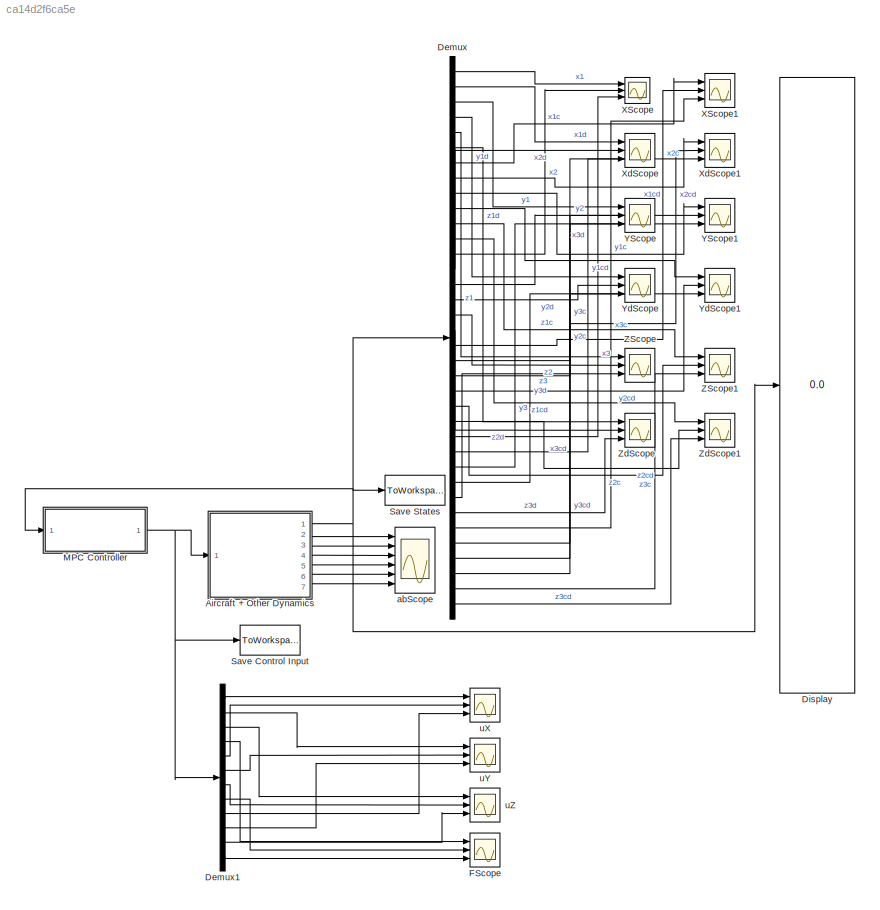
MODEL slx_ca14d2f6ca5e
KIND model
CONFIG AbsTol = auto
CONFIG EnableMultiTasking = off
CONFIG FixedStep = tstep
CONFIG InitFcn = initSim;
CONFIG MaxStep = tstep
CONFIG MinStep = auto
CONFIG RelTol = 1e-3
CONFIG SampleTimeConstraint = Unconstrained
CONFIG Solver = ode23t
CONFIG SolverName = ode23t
CONFIG StartTime = 0.0
CONFIG StopFcn = plotSimSolution;
CONFIG StopTime = 5
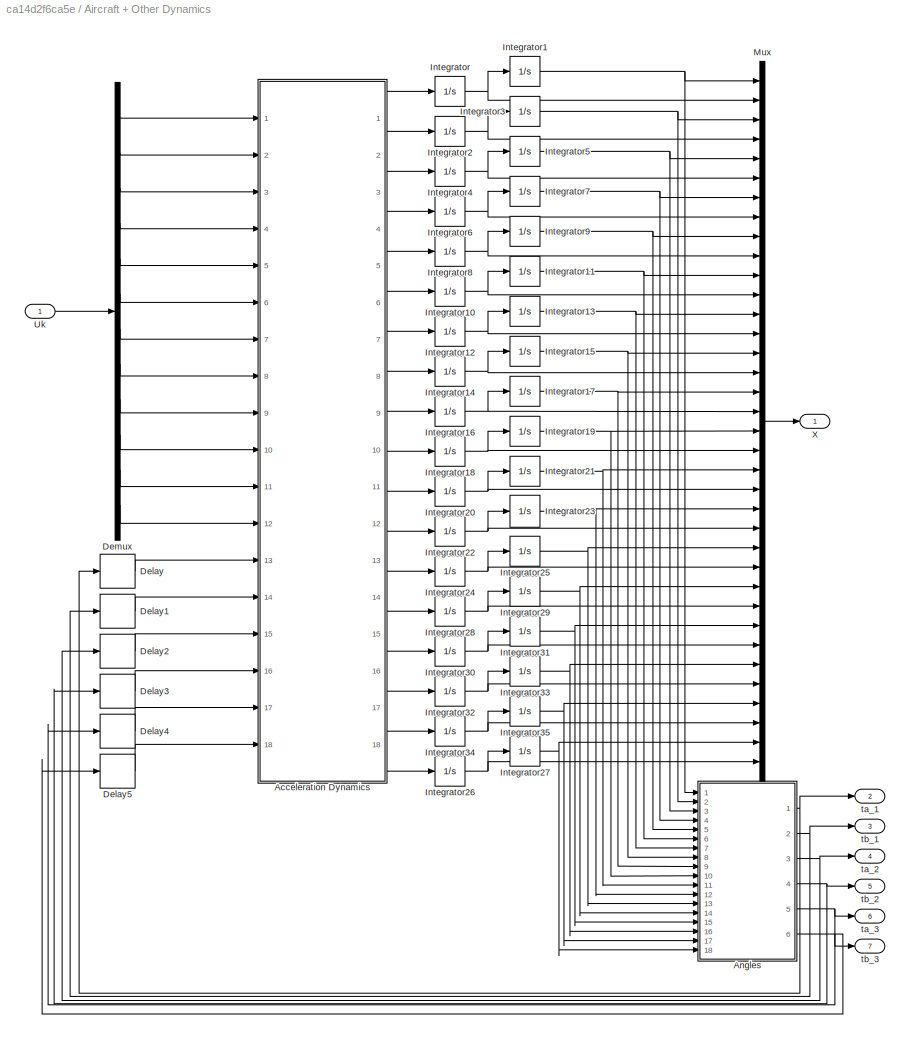
BLOCK [SubSystem] Aircraft + Other Dynamics
  Ports = [1, 7]
  RequestExecContextInheritance = off
  Variant = off
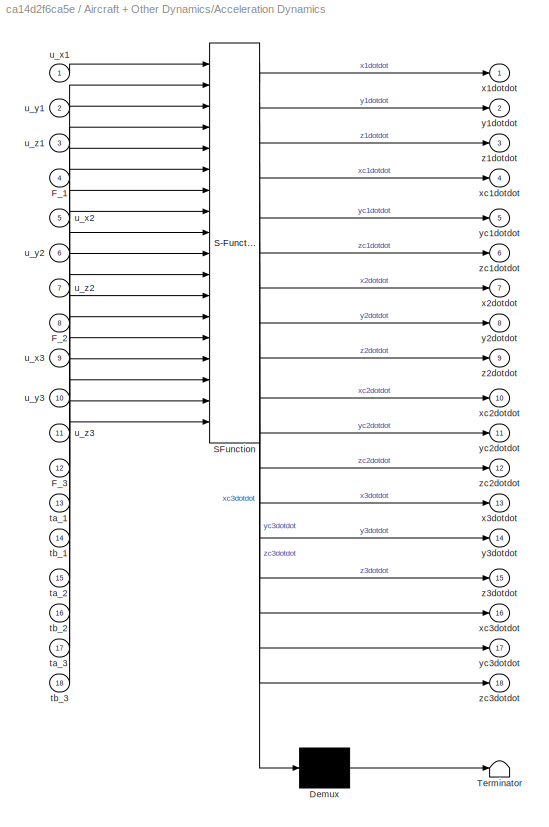
BLOCK [SubSystem] Aircraft + Other Dynamics/Acceleration Dynamics
  ErrorFcn = Stateflow.Translate.translate
  PermitHierarchicalResolution = ExplicitOnly
  Ports = [18, 18]
  RequestExecContextInheritance = off
  SFBlockType = MATLAB Function
  TreatAsAtomicUnit = on
  Variant = off
BLOCK [Demux] Aircraft + Other Dynamics/Acceleration Dynamics/ Demux 
  Outputs = 1
  Ports = [1, 1]
BLOCK [S-Function] Aircraft + Other Dynamics/Acceleration Dynamics/ SFunction 
  EnableBusSupport = on
  FunctionName = sf_sfun
  PortCounts = [18 19]
  Ports = [18, 19]
  SFcnIsStateOwnerBlock = off
  SFunctionDeploymentMode = off
  Tag = Stateflow S-Function MultiAgentNewtonian 2
BLOCK [Terminator] Aircraft + Other Dynamics/Acceleration Dynamics/ Terminator 
BLOCK [Inport] Aircraft + Other Dynamics/Acceleration Dynamics/F_1
  IconDisplay = Port number
  Port = 4
BLOCK [Inport] Aircraft + Other Dynamics/Acceleration Dynamics/F_2
  IconDisplay = Port number
  Port = 8
BLOCK [Inport] Aircraft + Other Dynamics/Acceleration Dynamics/F_3
  IconDisplay = Port number
  Port = 12
BLOCK [Inport] Aircraft + Other Dynamics/Acceleration Dynamics/ta_1
  IconDisplay = Port number
  Port = 13
BLOCK [Inport] Aircraft + Other Dynamics/Acceleration Dynamics/ta_2
  IconDisplay = Port number
  Port = 15
BLOCK [Inport] Aircraft + Other Dynamics/Acceleration Dynamics/ta_3
  IconDisplay = Port number
  Port = 17
BLOCK [Inport] Aircraft + Other Dynamics/Acceleration Dynamics/tb_1
  IconDisplay = Port number
  Port = 14
BLOCK [Inport] Aircraft + Other Dynamics/Acceleration Dynamics/tb_2
  IconDisplay = Port number
  Port = 16
BLOCK [Inport] Aircraft + Other Dynamics/Acceleration Dynamics/tb_3
  IconDisplay = Port number
  Port = 18
BLOCK [Inport] Aircraft + Other Dynamics/Acceleration Dynamics/u_x1
  IconDisplay = Port number
BLOCK [Inport] Aircraft + Other Dynamics/Acceleration Dynamics/u_x2
  IconDisplay = Port number
  Port = 5
BLOCK [Inport] Aircraft + Other Dynamics/Acceleration Dynamics/u_x3
  IconDisplay = Port number
  Port = 9
BLOCK [Inport] Aircraft + Other Dynamics/Acceleration Dynamics/u_y1
  IconDisplay = Port number
  Port = 2
BLOCK [Inport] Aircraft + Other Dynamics/Acceleration Dynamics/u_y2
  IconDisplay = Port number
  Port = 6
BLOCK [Inport] Aircraft + Other Dynamics/Acceleration Dynamics/u_y3
  IconDisplay = Port number
  Port = 10
BLOCK [Inport] Aircraft + Other Dynamics/Acceleration Dynamics/u_z1
  IconDisplay = Port number
  Port = 3
BLOCK [Inport] Aircraft + Other Dynamics/Acceleration Dynamics/u_z2
  IconDisplay = Port number
  Port = 7
BLOCK [Inport] Aircraft + Other Dynamics/Acceleration Dynamics/u_z3
  IconDisplay = Port number
  Port = 11
BLOCK [Outport] Aircraft + Other Dynamics/Acceleration Dynamics/x1dotdot
  IconDisplay = Port number
BLOCK [Outport] Aircraft + Other Dynamics/Acceleration Dynamics/x2dotdot
  IconDisplay = Port number
  Port = 7
BLOCK [Outport] Aircraft + Other Dynamics/Acceleration Dynamics/x3dotdot
  IconDisplay = Port number
  Port = 13
BLOCK [Outport] Aircraft + Other Dynamics/Acceleration Dynamics/xc1dotdot
  IconDisplay = Port number
  Port = 4
BLOCK [Outport] Aircraft + Other Dynamics/Acceleration Dynamics/xc2dotdot
  IconDisplay = Port number
  Port = 10
BLOCK [Outport] Aircraft + Other Dynamics/Acceleration Dynamics/xc3dotdot
  IconDisplay = Port number
  Port = 16
BLOCK [Outport] Aircraft + Other Dynamics/Acceleration Dynamics/y1dotdot
  IconDisplay = Port number
  Port = 2
BLOCK [Outport] Aircraft + Other Dynamics/Acceleration Dynamics/y2dotdot
  IconDisplay = Port number
  Port = 8
BLOCK [Outport] Aircraft + Other Dynamics/Acceleration Dynamics/y3dotdot
  IconDisplay = Port number
  Port = 14
BLOCK [Outport] Aircraft + Other Dynamics/Acceleration Dynamics/yc1dotdot
  IconDisplay = Port number
  Port = 5
BLOCK [Outport] Aircraft + Other Dynamics/Acceleration Dynamics/yc2dotdot
  IconDisplay = Port number
  Port = 11
BLOCK [Outport] Aircraft + Other Dynamics/Acceleration Dynamics/yc3dotdot
  IconDisplay = Port number
  Port = 17
BLOCK [Outport] Aircraft + Other Dynamics/Acceleration Dynamics/z1dotdot
  IconDisplay = Port number
  Port = 3
BLOCK [Outport] Aircraft + Other Dynamics/Acceleration Dynamics/z2dotdot
  IconDisplay = Port number
  Port = 9
BLOCK [Outport] Aircraft + Other Dynamics/Acceleration Dynamics/z3dotdot
  IconDisplay = Port number
  Port = 15
BLOCK [Outport] Aircraft + Other Dynamics/Acceleration Dynamics/zc1dotdot
  IconDisplay = Port number
  Port = 6
BLOCK [Outport] Aircraft + Other Dynamics/Acceleration Dynamics/zc2dotdot
  IconDisplay = Port number
  Port = 12
BLOCK [Outport] Aircraft + Other Dynamics/Acceleration Dynamics/zc3dotdot
  IconDisplay = Port number
  Port = 18
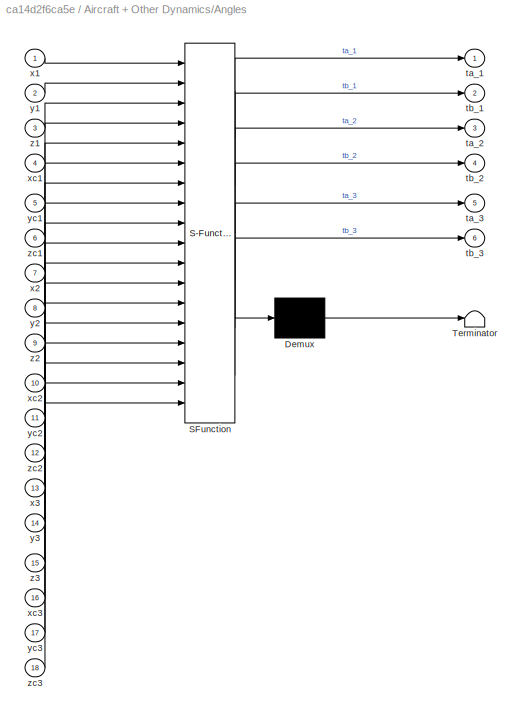
BLOCK [SubSystem] Aircraft + Other Dynamics/Angles
  ErrorFcn = Stateflow.Translate.translate
  PermitHierarchicalResolution = ExplicitOnly
  Ports = [18, 6]
  RequestExecContextInheritance = off
  SFBlockType = MATLAB Function
  TreatAsAtomicUnit = on
  Variant = off
BLOCK [Demux] Aircraft + Other Dynamics/Angles/ Demux 
  Outputs = 1
  Ports = [1, 1]
BLOCK [S-Function] Aircraft + Other Dynamics/Angles/ SFunction 
  EnableBusSupport = on
  FunctionName = sf_sfun
  PortCounts = [18 7]
  Ports = [18, 7]
  SFcnIsStateOwnerBlock = off
  SFunctionDeploymentMode = off
  Tag = Stateflow S-Function MultiAgentNewtonian 1
BLOCK [Terminator] Aircraft + Other Dynamics/Angles/ Terminator 
BLOCK [Outport] Aircraft + Other Dynamics/Angles/ta_1
  IconDisplay = Port number
BLOCK [Outport] Aircraft + Other Dynamics/Angles/ta_2
  IconDisplay = Port number
  Port = 3
BLOCK [Outport] Aircraft + Other Dynamics/Angles/ta_3
  IconDisplay = Port number
  Port = 5
BLOCK [Outport] Aircraft + Other Dynamics/Angles/tb_1
  IconDisplay = Port number
  Port = 2
BLOCK [Outport] Aircraft + Other Dynamics/Angles/tb_2
  IconDisplay = Port number
  Port = 4
BLOCK [Outport] Aircraft + Other Dynamics/Angles/tb_3
  IconDisplay = Port number
  Port = 6
BLOCK [Inport] Aircraft + Other Dynamics/Angles/x1
  IconDisplay = Port number
BLOCK [Inport] Aircraft + Other Dynamics/Angles/x2
  IconDisplay = Port number
  Port = 7
BLOCK [Inport] Aircraft + Other Dynamics/Angles/x3
  IconDisplay = Port number
  Port = 13
BLOCK [Inport] Aircraft + Other Dynamics/Angles/xc1
  IconDisplay = Port number
  Port = 4
BLOCK [Inport] Aircraft + Other Dynamics/Angles/xc2
  IconDisplay = Port number
  Port = 10
BLOCK [Inport] Aircraft + Other Dynamics/Angles/xc3
  IconDisplay = Port number
  Port = 16
BLOCK [Inport] Aircraft + Other Dynamics/Angles/y1
  IconDisplay = Port number
  Port = 2
BLOCK [Inport] Aircraft + Other Dynamics/Angles/y2
  IconDisplay = Port number
  Port = 8
BLOCK [Inport] Aircraft + Other Dynamics/Angles/y3
  IconDisplay = Port number
  Port = 14
BLOCK [Inport] Aircraft + Other Dynamics/Angles/yc1
  IconDisplay = Port number
  Port = 5
BLOCK [Inport] Aircraft + Other Dynamics/Angles/yc2
  IconDisplay = Port number
  Port = 11
BLOCK [Inport] Aircraft + Other Dynamics/Angles/yc3
  IconDisplay = Port number
  Port = 17
BLOCK [Inport] Aircraft + Other Dynamics/Angles/z1
  IconDisplay = Port number
  Port = 3
BLOCK [Inport] Aircraft + Other Dynamics/Angles/z2
  IconDisplay = Port number
  Port = 9
BLOCK [Inport] Aircraft + Other Dynamics/Angles/z3
  IconDisplay = Port number
  Port = 15
BLOCK [Inport] Aircraft + Other Dynamics/Angles/zc1
  IconDisplay = Port number
  Port = 6
BLOCK [Inport] Aircraft + Other Dynamics/Angles/zc2
  IconDisplay = Port number
  Port = 12
BLOCK [Inport] Aircraft + Other Dynamics/Angles/zc3
  IconDisplay = Port number
  Port = 18
BLOCK [Delay] Aircraft + Other Dynamics/Delay
  DelayLength = 1
  InputPortMap = u0
  Ports = [1, 1]
  SampleTime = tstep
BLOCK [Delay] Aircraft + Other Dynamics/Delay1
  DelayLength = 1
  InputPortMap = u0
  Ports = [1, 1]
  SampleTime = tstep
BLOCK [Delay] Aircraft + Other Dynamics/Delay2
  DelayLength = 1
  InputPortMap = u0
  Ports = [1, 1]
  SampleTime = tstep
BLOCK [Delay] Aircraft + Other Dynamics/Delay3
  DelayLength = 1
  InputPortMap = u0
  Ports = [1, 1]
  SampleTime = tstep
BLOCK [Delay] Aircraft + Other Dynamics/Delay4
  DelayLength = 1
  InputPortMap = u0
  Ports = [1, 1]
  SampleTime = tstep
BLOCK [Delay] Aircraft + Other Dynamics/Delay5
  DelayLength = 1
  InputPortMap = u0
  Ports = [1, 1]
  SampleTime = tstep
BLOCK [Demux] Aircraft + Other Dynamics/Demux
  DisplayOption = bar
  Outputs = 12
  Ports = [1, 12]
BLOCK [Integrator] Aircraft + Other Dynamics/Integrator
  Ports = [1, 1]
BLOCK [Integrator] Aircraft + Other Dynamics/Integrator1
  InitialCondition = 2.1
  Ports = [1, 1]
BLOCK [Integrator] Aircraft + Other Dynamics/Integrator10
  Ports = [1, 1]
BLOCK [Integrator] Aircraft + Other Dynamics/Integrator11
  InitialCondition = 1
  Ports = [1, 1]
BLOCK [Integrator] Aircraft + Other Dynamics/Integrator12
  Ports = [1, 1]
BLOCK [Integrator] Aircraft + Other Dynamics/Integrator13
  InitialCondition = 3
  Ports = [1, 1]
BLOCK [Integrator] Aircraft + Other Dynamics/Integrator14
  Ports = [1, 1]
BLOCK [Integrator] Aircraft + Other Dynamics/Integrator15
  Ports = [1, 1]
BLOCK [Integrator] Aircraft + Other Dynamics/Integrator16
  Ports = [1, 1]
BLOCK [Integrator] Aircraft + Other Dynamics/Integrator17
  InitialCondition = 2.2
  Ports = [1, 1]
BLOCK [Integrator] Aircraft + Other Dynamics/Integrator18
  Ports = [1, 1]
BLOCK [Integrator] Aircraft + Other Dynamics/Integrator19
  InitialCondition = 3
  Ports = [1, 1]
BLOCK [Integrator] Aircraft + Other Dynamics/Integrator2
  Ports = [1, 1]
BLOCK [Integrator] Aircraft + Other Dynamics/Integrator20
  Ports = [1, 1]
BLOCK [Integrator] Aircraft + Other Dynamics/Integrator21
  Ports = [1, 1]
BLOCK [Integrator] Aircraft + Other Dynamics/Integrator22
  Ports = [1, 1]
BLOCK [Integrator] Aircraft + Other Dynamics/Integrator23
  InitialCondition = 1
  Ports = [1, 1]
BLOCK [Integrator] Aircraft + Other Dynamics/Integrator24
  Ports = [1, 1]
BLOCK [Integrator] Aircraft + Other Dynamics/Integrator25
  InitialCondition = 3.9
  Ports = [1, 1]
BLOCK [Integrator] Aircraft + Other Dynamics/Integrator26
  Ports = [1, 1]
BLOCK [Integrator] Aircraft + Other Dynamics/Integrator27
  InitialCondition = 1
  Ports = [1, 1]
BLOCK [Integrator] Aircraft + Other Dynamics/Integrator28
  Ports = [1, 1]
BLOCK [Integrator] Aircraft + Other Dynamics/Integrator29
  Ports = [1, 1]
BLOCK [Integrator] Aircraft + Other Dynamics/Integrator3
  Ports = [1, 1]
BLOCK [Integrator] Aircraft + Other Dynamics/Integrator30
  Ports = [1, 1]
BLOCK [Integrator] Aircraft + Other Dynamics/Integrator31
  InitialCondition = 2.2
  Ports = [1, 1]
BLOCK [Integrator] Aircraft + Other Dynamics/Integrator32
  Ports = [1, 1]
BLOCK [Integrator] Aircraft + Other Dynamics/Integrator33
  InitialCondition = 3.9
  Ports = [1, 1]
BLOCK [Integrator] Aircraft + Other Dynamics/Integrator34
  Ports = [1, 1]
BLOCK [Integrator] Aircraft + Other Dynamics/Integrator35
  Ports = [1, 1]
BLOCK [Integrator] Aircraft + Other Dynamics/Integrator4
  Ports = [1, 1]
BLOCK [Integrator] Aircraft + Other Dynamics/Integrator5
  InitialCondition = 2.2
  Ports = [1, 1]
BLOCK [Integrator] Aircraft + Other Dynamics/Integrator6
  Ports = [1, 1]
BLOCK [Integrator] Aircraft + Other Dynamics/Integrator7
  InitialCondition = 2.1
  Ports = [1, 1]
BLOCK [Integrator] Aircraft + Other Dynamics/Integrator8
  Ports = [1, 1]
BLOCK [Integrator] Aircraft + Other Dynamics/Integrator9
  Ports = [1, 1]
BLOCK [Mux] Aircraft + Other Dynamics/Mux
  DisplayOption = bar
  Inputs = 36
  Ports = [36, 1]
BLOCK [Inport] Aircraft + Other Dynamics/Uk
  IconDisplay = Port number
BLOCK [Outport] Aircraft + Other Dynamics/X
  IconDisplay = Port number
BLOCK [Outport] Aircraft + Other Dynamics/ta_1
  IconDisplay = Port number
  Port = 2
BLOCK [Outport] Aircraft + Other Dynamics/ta_2
  IconDisplay = Port number
  Port = 4
BLOCK [Outport] Aircraft + Other Dynamics/ta_3
  IconDisplay = Port number
  Port = 6
BLOCK [Outport] Aircraft + Other Dynamics/tb_1
  IconDisplay = Port number
  Port = 3
BLOCK [Outport] Aircraft + Other Dynamics/tb_2
  IconDisplay = Port number
  Port = 5
BLOCK [Outport] Aircraft + Other Dynamics/tb_3
  IconDisplay = Port number
  Port = 7
BLOCK [Demux] Demux
  DisplayOption = bar
  Outputs = 36
  Ports = [1, 36]
BLOCK [Demux] Demux1
  DisplayOption = bar
  Outputs = 12
  Ports = [1, 12]
BLOCK [Display] Display
  Decimation = 1
  Ports = [1]
BLOCK [Scope] FScope
  NumInputPorts = 3
  Ports = [3]
  ScopeSpecificationString = Simulink.scopes.TimeScopeBlockCfg('CurrentConfiguration', extmgr.ConfigurationSet(extmgr.Configuration('Core','General UI',true),extmgr.Configuration('Core','Source UI',true),extmgr.Configuration('Sources','WiredSimulink',true,'DataLoggingVariableName','ScopeData1'),extmgr.Configuration('Visuals','Time Domain',true,'SerializedDisplays',{struct('MinYLimReal','55.4','MaxYLimReal','75.4','YLabelReal'...<+1439ch>
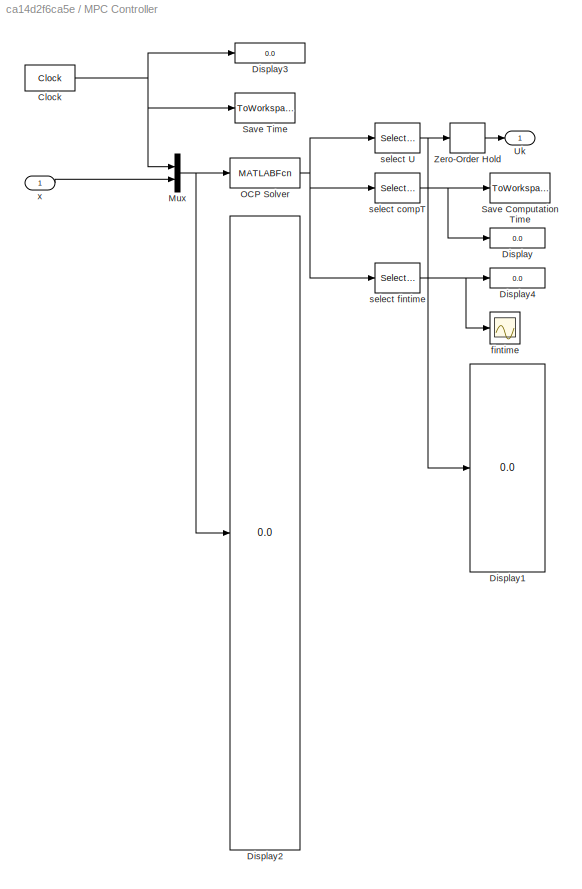
BLOCK [SubSystem] MPC Controller 
  Ports = [1, 1]
  RequestExecContextInheritance = off
  Variant = off
BLOCK [Clock] MPC Controller /Clock
  DisplayTime = on
BLOCK [Display] MPC Controller /Display
  Decimation = 1
  Ports = [1]
BLOCK [Display] MPC Controller /Display1
  Decimation = 1
  Ports = [1]
BLOCK [Display] MPC Controller /Display2
  Decimation = 1
  Ports = [1]
BLOCK [Display] MPC Controller /Display3
  Decimation = 1
  Ports = [1]
BLOCK [Display] MPC Controller /Display4
  Decimation = 1
  Ports = [1]
BLOCK [Mux] MPC Controller /Mux
  DisplayOption = bar
  Inputs = 2
  Ports = [2, 1]
BLOCK [MATLABFcn] MPC Controller /OCP Solver
  MATLABFcn = MAGSolver
  OutputDimensions = m+2
  Ports = [1, 1]
BLOCK [ToWorkspace] MPC Controller /Save Computation Time 
  FixptAsFi = on
  MaxDataPoints = inf
  Ports = [1]
  SampleTime = tstep
  Save2DSignal = 2-D array (concatenate along first dimension)
  VariableName = Comp_Time
BLOCK [ToWorkspace] MPC Controller /Save Time
  FixptAsFi = on
  MaxDataPoints = inf
  Ports = [1]
  SampleTime = -1
  Save2DSignal = 2-D array (concatenate along first dimension)
  VariableName = T
BLOCK [Outport] MPC Controller /Uk
  IconDisplay = Port number
BLOCK [ZeroOrderHold] MPC Controller /Zero-Order Hold
  SampleTime = tstep
BLOCK [Scope] MPC Controller /fintime
  NumInputPorts = 1
  Ports = [1]
  ScopeSpecificationString = Simulink.scopes.TimeScopeBlockCfg('CurrentConfiguration', extmgr.ConfigurationSet(extmgr.Configuration('Core','General UI',true),extmgr.Configuration('Core','Source UI',true),extmgr.Configuration('Sources','WiredSimulink',true,'DataLoggingVariableName','ScopeData1'),extmgr.Configuration('Visuals','Time Domain',true),extmgr.Configuration('Tools','Plot Navigation',true),extmgr.Configuration('Tools',...<+40ch>
BLOCK [Selector] MPC Controller /select U
  IndexOptions = Index vector (dialog)
  Indices = 3:m+2
  OutputSizes = 1
  Ports = [1, 1]
BLOCK [Selector] MPC Controller /select compT
  IndexOptions = Index vector (dialog)
  Indices = 2
  OutputSizes = 1
  Ports = [1, 1]
BLOCK [Selector] MPC Controller /select fintime
  IndexOptions = Index vector (dialog)
  Indices = 1
  OutputSizes = 1
  Ports = [1, 1]
BLOCK [Inport] MPC Controller /x
  IconDisplay = Port number
BLOCK [ToWorkspace] Save Control Input
  FixptAsFi = on
  MaxDataPoints = inf
  Ports = [1]
  SampleTime = -1
  Save2DSignal = 2-D array (concatenate along first dimension)
  VariableName = U
BLOCK [ToWorkspace] Save States
  FixptAsFi = on
  MaxDataPoints = inf
  Ports = [1]
  SampleTime = -1
  Save2DSignal = 3-D array (concatenate along third dimension)
  SaveFormat = Timeseries
  VariableName = X
BLOCK [Scope] XScope
  NumInputPorts = 3
  Ports = [3]
  ScopeSpecificationString = Simulink.scopes.TimeScopeBlockCfg('CurrentConfiguration', extmgr.ConfigurationSet(extmgr.Configuration('Core','General UI',true),extmgr.Configuration('Core','Source UI',true),extmgr.Configuration('Sources','WiredSimulink',true),extmgr.Configuration('Visuals','Time Domain',true,'SerializedDisplays',{struct('MinYLimReal','0.99692','MaxYLimReal','12.02774','YLabelReal','','MinYLimMag','0.99692','MaxY...<+1405ch>
BLOCK [Scope] XScope1
  NumInputPorts = 3
  Ports = [3]
  ScopeSpecificationString = Simulink.scopes.TimeScopeBlockCfg('CurrentConfiguration', extmgr.ConfigurationSet(extmgr.Configuration('Core','General UI',true),extmgr.Configuration('Core','Source UI',true),extmgr.Configuration('Sources','WiredSimulink',true,'DataLoggingVariableName','ScopeData1'),extmgr.Configuration('Visuals','Time Domain',true,'SerializedDisplays',{struct('MinYLimReal','0.99692','MaxYLimReal','12.02774','YLab...<+1447ch>
BLOCK [Scope] XdScope
  NumInputPorts = 3
  Ports = [3]
  ScopeSpecificationString = Simulink.scopes.TimeScopeBlockCfg('CurrentConfiguration', extmgr.ConfigurationSet(extmgr.Configuration('Core','General UI',true),extmgr.Configuration('Core','Source UI',true),extmgr.Configuration('Sources','WiredSimulink',true,'DataLoggingVariableName','ScopeData2'),extmgr.Configuration('Visuals','Time Domain',true,'SerializedDisplays',{struct('MinYLimReal','0.99692','MaxYLimReal','12.02774','YLab...<+1447ch>
BLOCK [Scope] XdScope1
  NumInputPorts = 3
  Ports = [3]
  ScopeSpecificationString = Simulink.scopes.TimeScopeBlockCfg('CurrentConfiguration', extmgr.ConfigurationSet(extmgr.Configuration('Core','General UI',true),extmgr.Configuration('Core','Source UI',true),extmgr.Configuration('Sources','WiredSimulink',true,'DataLoggingVariableName','ScopeData2'),extmgr.Configuration('Visuals','Time Domain',true,'SerializedDisplays',{struct('MinYLimReal','0.99692','MaxYLimReal','12.02774','YLab...<+1450ch>
BLOCK [Scope] YScope
  NumInputPorts = 3
  Ports = [3]
  ScopeSpecificationString = Simulink.scopes.TimeScopeBlockCfg('CurrentConfiguration', extmgr.ConfigurationSet(extmgr.Configuration('Core','General UI',true),extmgr.Configuration('Core','Source UI',true),extmgr.Configuration('Sources','WiredSimulink',true,'DataLoggingVariableName','ScopeData1'),extmgr.Configuration('Visuals','Time Domain',true,'SerializedDisplays',{struct('MinYLimReal','-37.74035','MaxYLimReal','35.30914','YL...<+1449ch>
BLOCK [Scope] YScope1
  NumInputPorts = 3
  Ports = [3]
  ScopeSpecificationString = Simulink.scopes.TimeScopeBlockCfg('CurrentConfiguration', extmgr.ConfigurationSet(extmgr.Configuration('Core','General UI',true),extmgr.Configuration('Core','Source UI',true),extmgr.Configuration('Sources','WiredSimulink',true,'DataLoggingVariableName','ScopeData3'),extmgr.Configuration('Visuals','Time Domain',true,'SerializedDisplays',{struct('MinYLimReal','-37.74035','MaxYLimReal','35.30914','YL...<+1452ch>
BLOCK [Scope] YdScope
  NumInputPorts = 3
  Ports = [3]
  ScopeSpecificationString = Simulink.scopes.TimeScopeBlockCfg('CurrentConfiguration', extmgr.ConfigurationSet(extmgr.Configuration('Core','General UI',true),extmgr.Configuration('Core','Source UI',true),extmgr.Configuration('Sources','WiredSimulink',true,'DataLoggingVariableName','ScopeData3'),extmgr.Configuration('Visuals','Time Domain',true,'SerializedDisplays',{struct('MinYLimReal','-37.74035','MaxYLimReal','35.30914','YL...<+1452ch>
BLOCK [Scope] YdScope1
  NumInputPorts = 3
  Ports = [3]
  ScopeSpecificationString = Simulink.scopes.TimeScopeBlockCfg('CurrentConfiguration', extmgr.ConfigurationSet(extmgr.Configuration('Core','General UI',true),extmgr.Configuration('Core','Source UI',true),extmgr.Configuration('Sources','WiredSimulink',true,'DataLoggingVariableName','ScopeData4'),extmgr.Configuration('Visuals','Time Domain',true,'SerializedDisplays',{struct('MinYLimReal','-37.74035','MaxYLimReal','35.30914','YL...<+1455ch>
BLOCK [Scope] ZScope
  NumInputPorts = 3
  Ports = [3]
  ScopeSpecificationString = Simulink.scopes.TimeScopeBlockCfg('CurrentConfiguration', extmgr.ConfigurationSet(extmgr.Configuration('Core','General UI',true),extmgr.Configuration('Core','Source UI',true),extmgr.Configuration('Sources','WiredSimulink',true,'DataLoggingVariableName','ScopeData2'),extmgr.Configuration('Visuals','Time Domain',true,'SerializedDisplays',{struct('MinYLimReal','-37.74035','MaxYLimReal','35.30914','YL...<+1449ch>
BLOCK [Scope] ZScope1
  NumInputPorts = 3
  Ports = [3]
  ScopeSpecificationString = Simulink.scopes.TimeScopeBlockCfg('CurrentConfiguration', extmgr.ConfigurationSet(extmgr.Configuration('Core','General UI',true),extmgr.Configuration('Core','Source UI',true),extmgr.Configuration('Sources','WiredSimulink',true,'DataLoggingVariableName','ScopeData5'),extmgr.Configuration('Visuals','Time Domain',true,'SerializedDisplays',{struct('MinYLimReal','-37.74035','MaxYLimReal','35.30914','YL...<+1452ch>
BLOCK [Scope] ZdScope
  NumInputPorts = 3
  Ports = [3]
  ScopeSpecificationString = Simulink.scopes.TimeScopeBlockCfg('CurrentConfiguration', extmgr.ConfigurationSet(extmgr.Configuration('Core','General UI',true),extmgr.Configuration('Core','Source UI',true),extmgr.Configuration('Sources','WiredSimulink',true,'DataLoggingVariableName','ScopeData4'),extmgr.Configuration('Visuals','Time Domain',true,'SerializedDisplays',{struct('MinYLimReal','-37.74035','MaxYLimReal','35.30914','YL...<+1452ch>
BLOCK [Scope] ZdScope1
  NumInputPorts = 3
  Ports = [3]
  ScopeSpecificationString = Simulink.scopes.TimeScopeBlockCfg('CurrentConfiguration', extmgr.ConfigurationSet(extmgr.Configuration('Core','General UI',true),extmgr.Configuration('Core','Source UI',true),extmgr.Configuration('Sources','WiredSimulink',true,'DataLoggingVariableName','ScopeData6'),extmgr.Configuration('Visuals','Time Domain',true,'SerializedDisplays',{struct('MinYLimReal','-37.74035','MaxYLimReal','35.30914','YL...<+1455ch>
BLOCK [Scope] abScope
  NumInputPorts = 6
  Ports = [6]
  ScopeSpecificationString = Simulink.scopes.TimeScopeBlockCfg('CurrentConfiguration', extmgr.ConfigurationSet(extmgr.Configuration('Core','General UI',true),extmgr.Configuration('Core','Source UI',true),extmgr.Configuration('Sources','WiredSimulink',true,'DataLoggingVariableName','ScopeData2'),extmgr.Configuration('Visuals','Time Domain',true,'SerializedDisplays',{struct('MinYLimReal','-37.74035','MaxYLimReal','35.30914','YL...<+1633ch>
BLOCK [Scope] uX
  NumInputPorts = 3
  Ports = [3]
  ScopeSpecificationString = Simulink.scopes.TimeScopeBlockCfg('CurrentConfiguration', extmgr.ConfigurationSet(extmgr.Configuration('Core','General UI',true),extmgr.Configuration('Core','Source UI',true),extmgr.Configuration('Sources','WiredSimulink',true,'DataLoggingVariableName','ScopeData1'),extmgr.Configuration('Visuals','Time Domain',true,'SerializedDisplays',{struct('MinYLimReal','-9.16843','MaxYLimReal','82.51438','YLa...<+1463ch>
BLOCK [Scope] uY
  NumInputPorts = 3
  Ports = [3]
  ScopeSpecificationString = Simulink.scopes.TimeScopeBlockCfg('CurrentConfiguration', extmgr.ConfigurationSet(extmgr.Configuration('Core','General UI',true),extmgr.Configuration('Core','Source UI',true),extmgr.Configuration('Sources','WiredSimulink',true,'DataLoggingVariableName','ScopeData2'),extmgr.Configuration('Visuals','Time Domain',true,'SerializedDisplays',{struct('MinYLimReal','-9.16843','MaxYLimReal','82.51438','YLa...<+1466ch>
BLOCK [Scope] uZ
  NumInputPorts = 3
  Ports = [3]
  ScopeSpecificationString = Simulink.scopes.TimeScopeBlockCfg('CurrentConfiguration', extmgr.ConfigurationSet(extmgr.Configuration('Core','General UI',true),extmgr.Configuration('Core','Source UI',true),extmgr.Configuration('Sources','WiredSimulink',true,'DataLoggingVariableName','ScopeData3'),extmgr.Configuration('Visuals','Time Domain',true,'SerializedDisplays',{struct('MinYLimReal','-37.74035','MaxYLimReal','35.30914','YL...<+1468ch>
LINE Aircraft + Other Dynamics/Acceleration Dynamics:1 -> Aircraft + Other Dynamics/Integrator:1
LINE Aircraft + Other Dynamics/Acceleration Dynamics:10 -> Aircraft + Other Dynamics/Integrator18:1
LINE Aircraft + Other Dynamics/Acceleration Dynamics:11 -> Aircraft + Other Dynamics/Integrator20:1
LINE Aircraft + Other Dynamics/Acceleration Dynamics:12 -> Aircraft + Other Dynamics/Integrator22:1
LINE Aircraft + Other Dynamics/Acceleration Dynamics:13 -> Aircraft + Other Dynamics/Integrator24:1
LINE Aircraft + Other Dynamics/Acceleration Dynamics:14 -> Aircraft + Other Dynamics/Integrator28:1
LINE Aircraft + Other Dynamics/Acceleration Dynamics:15 -> Aircraft + Other Dynamics/Integrator30:1
LINE Aircraft + Other Dynamics/Acceleration Dynamics:16 -> Aircraft + Other Dynamics/Integrator32:1
LINE Aircraft + Other Dynamics/Acceleration Dynamics:17 -> Aircraft + Other Dynamics/Integrator34:1
LINE Aircraft + Other Dynamics/Acceleration Dynamics:18 -> Aircraft + Other Dynamics/Integrator26:1
LINE Aircraft + Other Dynamics/Acceleration Dynamics:2 -> Aircraft + Other Dynamics/Integrator2:1
LINE Aircraft + Other Dynamics/Acceleration Dynamics:3 -> Aircraft + Other Dynamics/Integrator4:1
LINE Aircraft + Other Dynamics/Acceleration Dynamics:4 -> Aircraft + Other Dynamics/Integrator6:1
LINE Aircraft + Other Dynamics/Acceleration Dynamics:5 -> Aircraft + Other Dynamics/Integrator8:1
LINE Aircraft + Other Dynamics/Acceleration Dynamics:6 -> Aircraft + Other Dynamics/Integrator10:1
LINE Aircraft + Other Dynamics/Acceleration Dynamics:7 -> Aircraft + Other Dynamics/Integrator12:1
LINE Aircraft + Other Dynamics/Acceleration Dynamics:8 -> Aircraft + Other Dynamics/Integrator14:1
LINE Aircraft + Other Dynamics/Acceleration Dynamics:9 -> Aircraft + Other Dynamics/Integrator16:1
NET Aircraft + Other Dynamics/Angles:1 -> Aircraft + Other Dynamics/Delay:1, Aircraft + Other Dynamics/ta_1:1
NET Aircraft + Other Dynamics/Angles:2 -> Aircraft + Other Dynamics/Delay1:1, Aircraft + Other Dynamics/tb_1:1
NET Aircraft + Other Dynamics/Angles:3 -> Aircraft + Other Dynamics/Delay2:1, Aircraft + Other Dynamics/ta_2:1
NET Aircraft + Other Dynamics/Angles:4 -> Aircraft + Other Dynamics/Delay3:1, Aircraft + Other Dynamics/tb_2:1
NET Aircraft + Other Dynamics/Angles:5 -> Aircraft + Other Dynamics/Delay4:1, Aircraft + Other Dynamics/ta_3:1
NET Aircraft + Other Dynamics/Angles:6 -> Aircraft + Other Dynamics/Delay5:1, Aircraft + Other Dynamics/tb_3:1
LINE Aircraft + Other Dynamics/Delay1:1 -> Aircraft + Other Dynamics/Acceleration Dynamics:14
LINE Aircraft + Other Dynamics/Delay2:1 -> Aircraft + Other Dynamics/Acceleration Dynamics:15
LINE Aircraft + Other Dynamics/Delay3:1 -> Aircraft + Other Dynamics/Acceleration Dynamics:16
LINE Aircraft + Other Dynamics/Delay4:1 -> Aircraft + Other Dynamics/Acceleration Dynamics:17
LINE Aircraft + Other Dynamics/Delay5:1 -> Aircraft + Other Dynamics/Acceleration Dynamics:18
LINE Aircraft + Other Dynamics/Delay:1 -> Aircraft + Other Dynamics/Acceleration Dynamics:13
LINE Aircraft + Other Dynamics/Demux:1 -> Aircraft + Other Dynamics/Acceleration Dynamics:1
LINE Aircraft + Other Dynamics/Demux:10 -> Aircraft + Other Dynamics/Acceleration Dynamics:10
LINE Aircraft + Other Dynamics/Demux:11 -> Aircraft + Other Dynamics/Acceleration Dynamics:11
LINE Aircraft + Other Dynamics/Demux:12 -> Aircraft + Other Dynamics/Acceleration Dynamics:12
LINE Aircraft + Other Dynamics/Demux:2 -> Aircraft + Other Dynamics/Acceleration Dynamics:2
LINE Aircraft + Other Dynamics/Demux:3 -> Aircraft + Other Dynamics/Acceleration Dynamics:3
LINE Aircraft + Other Dynamics/Demux:4 -> Aircraft + Other Dynamics/Acceleration Dynamics:4
LINE Aircraft + Other Dynamics/Demux:5 -> Aircraft + Other Dynamics/Acceleration Dynamics:5
LINE Aircraft + Other Dynamics/Demux:6 -> Aircraft + Other Dynamics/Acceleration Dynamics:6
LINE Aircraft + Other Dynamics/Demux:7 -> Aircraft + Other Dynamics/Acceleration Dynamics:7
LINE Aircraft + Other Dynamics/Demux:8 -> Aircraft + Other Dynamics/Acceleration Dynamics:8
LINE Aircraft + Other Dynamics/Demux:9 -> Aircraft + Other Dynamics/Acceleration Dynamics:9
NET Aircraft + Other Dynamics/Integrator10:1 -> Aircraft + Other Dynamics/Integrator11:1, Aircraft + Other Dynamics/Mux:12
NET Aircraft + Other Dynamics/Integrator11:1 -> Aircraft + Other Dynamics/Angles:6, Aircraft + Other Dynamics/Mux:11
NET Aircraft + Other Dynamics/Integrator12:1 -> Aircraft + Other Dynamics/Integrator13:1, Aircraft + Other Dynamics/Mux:14
NET Aircraft + Other Dynamics/Integrator13:1 -> Aircraft + Other Dynamics/Angles:7, Aircraft + Other Dynamics/Mux:13
NET Aircraft + Other Dynamics/Integrator14:1 -> Aircraft + Other Dynamics/Integrator15:1, Aircraft + Other Dynamics/Mux:16
NET Aircraft + Other Dynamics/Integrator15:1 -> Aircraft + Other Dynamics/Angles:8, Aircraft + Other Dynamics/Mux:15
NET Aircraft + Other Dynamics/Integrator16:1 -> Aircraft + Other Dynamics/Integrator17:1, Aircraft + Other Dynamics/Mux:18
NET Aircraft + Other Dynamics/Integrator17:1 -> Aircraft + Other Dynamics/Angles:9, Aircraft + Other Dynamics/Mux:17
NET Aircraft + Other Dynamics/Integrator18:1 -> Aircraft + Other Dynamics/Integrator19:1, Aircraft + Other Dynamics/Mux:20
NET Aircraft + Other Dynamics/Integrator19:1 -> Aircraft + Other Dynamics/Angles:10, Aircraft + Other Dynamics/Mux:19
NET Aircraft + Other Dynamics/Integrator1:1 -> Aircraft + Other Dynamics/Angles:1, Aircraft + Other Dynamics/Mux:1
NET Aircraft + Other Dynamics/Integrator20:1 -> Aircraft + Other Dynamics/Integrator21:1, Aircraft + Other Dynamics/Mux:22
NET Aircraft + Other Dynamics/Integrator21:1 -> Aircraft + Other Dynamics/Angles:11, Aircraft + Other Dynamics/Mux:21
NET Aircraft + Other Dynamics/Integrator22:1 -> Aircraft + Other Dynamics/Integrator23:1, Aircraft + Other Dynamics/Mux:24
NET Aircraft + Other Dynamics/Integrator23:1 -> Aircraft + Other Dynamics/Angles:12, Aircraft + Other Dynamics/Mux:23
NET Aircraft + Other Dynamics/Integrator24:1 -> Aircraft + Other Dynamics/Integrator25:1, Aircraft + Other Dynamics/Mux:26
NET Aircraft + Other Dynamics/Integrator25:1 -> Aircraft + Other Dynamics/Angles:13, Aircraft + Other Dynamics/Mux:25
NET Aircraft + Other Dynamics/Integrator26:1 -> Aircraft + Other Dynamics/Integrator27:1, Aircraft + Other Dynamics/Mux:36
NET Aircraft + Other Dynamics/Integrator27:1 -> Aircraft + Other Dynamics/Angles:18, Aircraft + Other Dynamics/Mux:35
NET Aircraft + Other Dynamics/Integrator28:1 -> Aircraft + Other Dynamics/Integrator29:1, Aircraft + Other Dynamics/Mux:28
NET Aircraft + Other Dynamics/Integrator29:1 -> Aircraft + Other Dynamics/Angles:14, Aircraft + Other Dynamics/Mux:27
NET Aircraft + Other Dynamics/Integrator2:1 -> Aircraft + Other Dynamics/Integrator3:1, Aircraft + Other Dynamics/Mux:4
NET Aircraft + Other Dynamics/Integrator30:1 -> Aircraft + Other Dynamics/Integrator31:1, Aircraft + Other Dynamics/Mux:30
NET Aircraft + Other Dynamics/Integrator31:1 -> Aircraft + Other Dynamics/Angles:15, Aircraft + Other Dynamics/Mux:29
NET Aircraft + Other Dynamics/Integrator32:1 -> Aircraft + Other Dynamics/Integrator33:1, Aircraft + Other Dynamics/Mux:32
NET Aircraft + Other Dynamics/Integrator33:1 -> Aircraft + Other Dynamics/Angles:16, Aircraft + Other Dynamics/Mux:31
NET Aircraft + Other Dynamics/Integrator34:1 -> Aircraft + Other Dynamics/Integrator35:1, Aircraft + Other Dynamics/Mux:34
NET Aircraft + Other Dynamics/Integrator35:1 -> Aircraft + Other Dynamics/Angles:17, Aircraft + Other Dynamics/Mux:33
NET Aircraft + Other Dynamics/Integrator3:1 -> Aircraft + Other Dynamics/Angles:2, Aircraft + Other Dynamics/Mux:3
NET Aircraft + Other Dynamics/Integrator4:1 -> Aircraft + Other Dynamics/Integrator5:1, Aircraft + Other Dynamics/Mux:6
NET Aircraft + Other Dynamics/Integrator5:1 -> Aircraft + Other Dynamics/Angles:3, Aircraft + Other Dynamics/Mux:5
NET Aircraft + Other Dynamics/Integrator6:1 -> Aircraft + Other Dynamics/Integrator7:1, Aircraft + Other Dynamics/Mux:8
NET Aircraft + Other Dynamics/Integrator7:1 -> Aircraft + Other Dynamics/Angles:4, Aircraft + Other Dynamics/Mux:7
NET Aircraft + Other Dynamics/Integrator8:1 -> Aircraft + Other Dynamics/Integrator9:1, Aircraft + Other Dynamics/Mux:10
NET Aircraft + Other Dynamics/Integrator9:1 -> Aircraft + Other Dynamics/Angles:5, Aircraft + Other Dynamics/Mux:9
NET Aircraft + Other Dynamics/Integrator:1 -> Aircraft + Other Dynamics/Integrator1:1, Aircraft + Other Dynamics/Mux:2
LINE Aircraft + Other Dynamics/Mux:1 -> Aircraft + Other Dynamics/X:1
LINE Aircraft + Other Dynamics/Uk:1 -> Aircraft + Other Dynamics/Demux:1
NET Aircraft + Other Dynamics:1 -> Demux:1, Display:1, MPC Controller :1, Save States:1
LINE Aircraft + Other Dynamics:2 -> abScope:1
LINE Aircraft + Other Dynamics:3 -> abScope:2
LINE Aircraft + Other Dynamics:4 -> abScope:3
LINE Aircraft + Other Dynamics:5 -> abScope:4
LINE Aircraft + Other Dynamics:6 -> abScope:5
LINE Aircraft + Other Dynamics:7 -> abScope:6
LINE Demux1:1 -> uX:1
LINE Demux1:10 -> uY:3
LINE Demux1:11 -> uZ:3
LINE Demux1:12 -> FScope:3
LINE Demux1:2 -> uY:1
LINE Demux1:3 -> uZ:1
LINE Demux1:4 -> FScope:1
LINE Demux1:5 -> uX:2
LINE Demux1:6 -> uY:2
LINE Demux1:7 -> uZ:2
LINE Demux1:8 -> FScope:2
LINE Demux1:9 -> uX:3
LINE Demux:1 -> XScope:1
LINE Demux:10 -> YdScope1:1
LINE Demux:11 -> ZScope1:1
LINE Demux:12 -> ZdScope1:1
LINE Demux:13 -> XScope:2
LINE Demux:14 -> XdScope:2
LINE Demux:15 -> YScope:2
LINE Demux:16 -> YdScope:2
LINE Demux:17 -> ZScope:2
LINE Demux:18 -> ZdScope:2
LINE Demux:19 -> XScope1:2
LINE Demux:2 -> XdScope:1
LINE Demux:20 -> XdScope1:2
LINE Demux:21 -> YScope1:2
LINE Demux:22 -> YdScope1:2
LINE Demux:23 -> ZScope1:2
LINE Demux:24 -> ZdScope1:2
LINE Demux:25 -> XScope:3
LINE Demux:26 -> XdScope:3
LINE Demux:27 -> YScope:3
LINE Demux:28 -> YdScope:3
LINE Demux:29 -> ZScope:3
LINE Demux:3 -> YScope:1
LINE Demux:30 -> ZdScope:3
LINE Demux:31 -> XScope1:3
LINE Demux:32 -> XdScope1:3
LINE Demux:33 -> YScope1:3
LINE Demux:34 -> YdScope1:3
LINE Demux:35 -> ZScope1:3
LINE Demux:36 -> ZdScope1:3
LINE Demux:4 -> YdScope:1
LINE Demux:5 -> ZScope:1
LINE Demux:6 -> ZdScope:1
LINE Demux:7 -> XScope1:1
LINE Demux:8 -> XdScope1:1
LINE Demux:9 -> YScope1:1
NET MPC Controller /Clock:1 -> MPC Controller /Display3:1, MPC Controller /Mux:1, MPC Controller /Save Time:1
NET MPC Controller /Mux:1 -> MPC Controller /Display2:1, MPC Controller /OCP Solver:1
NET MPC Controller /OCP Solver:1 -> MPC Controller /select U:1, MPC Controller /select compT:1, MPC Controller /select fintime:1
LINE MPC Controller /Zero-Order Hold:1 -> MPC Controller /Uk:1
NET MPC Controller /select U:1 -> MPC Controller /Display1:1, MPC Controller /Zero-Order Hold:1
NET MPC Controller /select compT:1 -> MPC Controller /Display:1, MPC Controller /Save Computation Time :1
NET MPC Controller /select fintime:1 -> MPC Controller /Display4:1, MPC Controller /fintime:1
LINE MPC Controller /x:1 -> MPC Controller /Mux:2
NET MPC Controller :1 -> Aircraft + Other Dynamics:1, Demux1:1, Save Control Input:1
note: NET lines group one-source signal fan-out (src -> all destinations, sorted); 1:1 wires keep LINE
CHART Aircraft + Other Dynamics/Angles states=1 transitions=1
  STATE_LABEL 'eML_blk_kernel()'
  STATE_LABEL 'SCRIPT:\nfunction [ta_1,tb_1,ta_2,tb_2,ta_3,tb_3] = updateAngles(x1,y1,z1,xc1,yc1,zc1,x2,y2,z2,xc2,yc2,zc2,x3,y3,z3,xc3,yc3,zc3)\n\nta_1 = (x1-xc1)/(z1-zc1);\ntb_1 = (y1-yc1)/(z1-zc1);\nta_2 = (x2-xc2)/(z2-zc2);\ntb_2 = (y2-yc2)/(z2-zc2);\nta_3 = (x3-xc3)/(z3-zc3);\ntb_3 = (y3-yc3)/(z3-zc3);'
CHART Aircraft + Other Dynamics/Acceleration Dynamics states=1 transitions=1
  STATE_LABEL 'eML_blk_kernel()'
  STATE_LABEL 'SCRIPT:\nfunction [x1dotdot,y1dotdot,z1dotdot,...\n    xc1dotdot,yc1dotdot,zc1dotdot,...\n    x2dotdot,y2dotdot,z2dotdot,...\n    xc2dotdot,yc2dotdot,zc2dotdot,...\n    x3dotdot,y3dotdot,z3dotdot,...\n    xc3dotdot,yc3dotdot,zc3dotdot]= fcn(u_x1,u_y1,u_z1,F_1,u_x2,u_y2,u_z2,F_2,u_x3,u_y3,u_z3,F_3,ta_1,tb_1,ta_2,tb_2,ta_3,tb_3)\n\nm_ag = 0.81;\nm_pl = 2;\ng = 9.81;\n\nx1dotdot = (1/m_ag)*(u_x1 - F_1*(ta_1)); %...<+702ch>'
